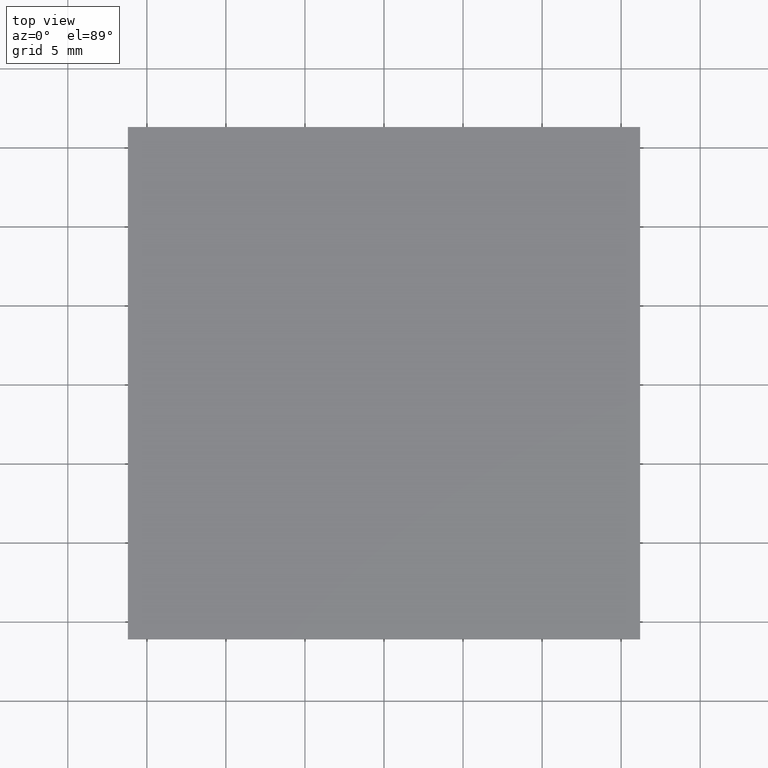
[diagram: clean part render]
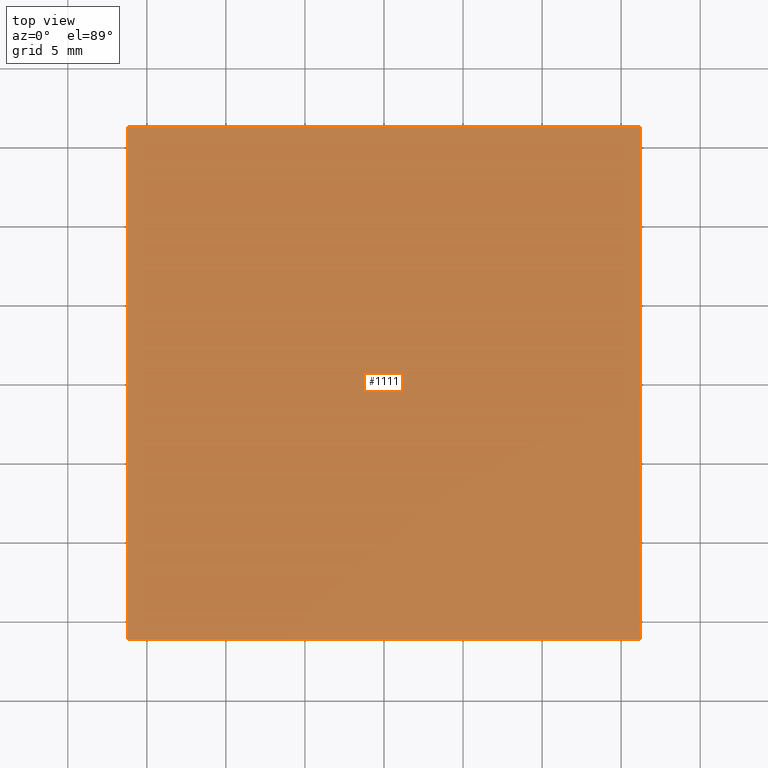
[diagram: same view with one face highlighted and labeled with its STEP entity id]
A machine part, top view. The second image highlights one B-rep face of the part: STEP entity #1111.
In plain terms, the highlighted face is a freeform B-spline surface patch.
Its self-contained STEP definition (entity closure, byte-faithful):
#1076=CARTESIAN_POINT('',(-17.818380849646569,-17.818380849646569,6.400000000000000));
#1077=CARTESIAN_POINT('',(17.818380849646569,-17.818380849646569,6.400000000000000));
#1078=CARTESIAN_POINT('',(-17.818380849646569,17.818380849646569,6.400000000000000));
#1079=CARTESIAN_POINT('',(17.818380849646569,17.818380849646569,6.400000000000000));
#1080=B_SPLINE_SURFACE_WITH_KNOTS('',1,1,((#1076,#1078),(#1077,#1079)),.UNSPECIFIED.,.F.,.F.,.U.,(2,2),(2,2),(0.0,35.636761699293132),(0.0,35.636761699293132),.UNSPECIFIED.);
#1081=CARTESIAN_POINT('',(16.199999999999999,16.199999999999999,6.400000000000000));
#1082=VERTEX_POINT('',#1081);
#1083=CARTESIAN_POINT('',(16.199999999999999,-16.199999999999999,6.400000000000000));
#1084=VERTEX_POINT('',#1083);
#1085=CARTESIAN_POINT('',(16.199999999999999,16.199999999999999,6.400000000000000));
#1086=CARTESIAN_POINT('',(16.199999999999999,-16.199999999999999,6.400000000000000));
#1087=QUASI_UNIFORM_CURVE('',1,(#1085,#1086),.UNSPECIFIED.,.F.,.U.);
#1088=EDGE_CURVE('',#1082,#1084,#1087,.T.);
#1089=ORIENTED_EDGE('',*,*,#1088,.F.);
#1090=CARTESIAN_POINT('',(-16.199999999999999,16.199999999999999,6.400000000000000));
#1091=VERTEX_POINT('',#1090);
#1092=CARTESIAN_POINT('',(-16.199999999999999,16.199999999999999,6.400000000000000));
#1093=CARTESIAN_POINT('',(16.199999999999999,16.199999999999999,6.400000000000000));
#1094=QUASI_UNIFORM_CURVE('',1,(#1092,#1093),.UNSPECIFIED.,.F.,.U.);
#1095=EDGE_CURVE('',#1091,#1082,#1094,.T.);
#1096=ORIENTED_EDGE('',*,*,#1095,.F.);
#1097=CARTESIAN_POINT('',(-16.199999999999999,-16.199999999999999,6.400000000000000));
#1098=VERTEX_POINT('',#1097);
#1099=CARTESIAN_POINT('',(-16.199999999999999,-16.199999999999999,6.400000000000000));
#1100=CARTESIAN_POINT('',(-16.199999999999999,16.199999999999999,6.400000000000000));
#1101=QUASI_UNIFORM_CURVE('',1,(#1099,#1100),.UNSPECIFIED.,.F.,.U.);
#1102=EDGE_CURVE('',#1098,#1091,#1101,.T.);
#1103=ORIENTED_EDGE('',*,*,#1102,.F.);
#1104=CARTESIAN_POINT('',(16.199999999999999,-16.199999999999999,6.400000000000000));
#1105=CARTESIAN_POINT('',(-16.199999999999999,-16.199999999999999,6.400000000000000));
#1106=QUASI_UNIFORM_CURVE('',1,(#1104,#1105),.UNSPECIFIED.,.F.,.U.);
#1107=EDGE_CURVE('',#1084,#1098,#1106,.T.);
#1108=ORIENTED_EDGE('',*,*,#1107,.F.);
#1109=EDGE_LOOP('',(#1089,#1096,#1103,#1108));
#1110=FACE_OUTER_BOUND('',#1109,.T.);
#1111=ADVANCED_FACE('',(#1110),#1080,.T.);